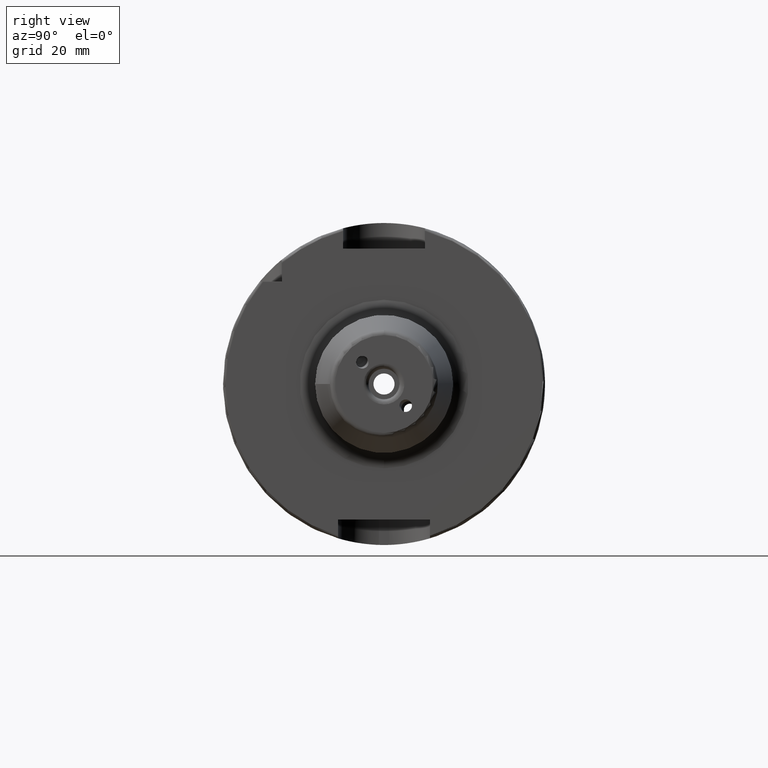
[diagram: clean part render]
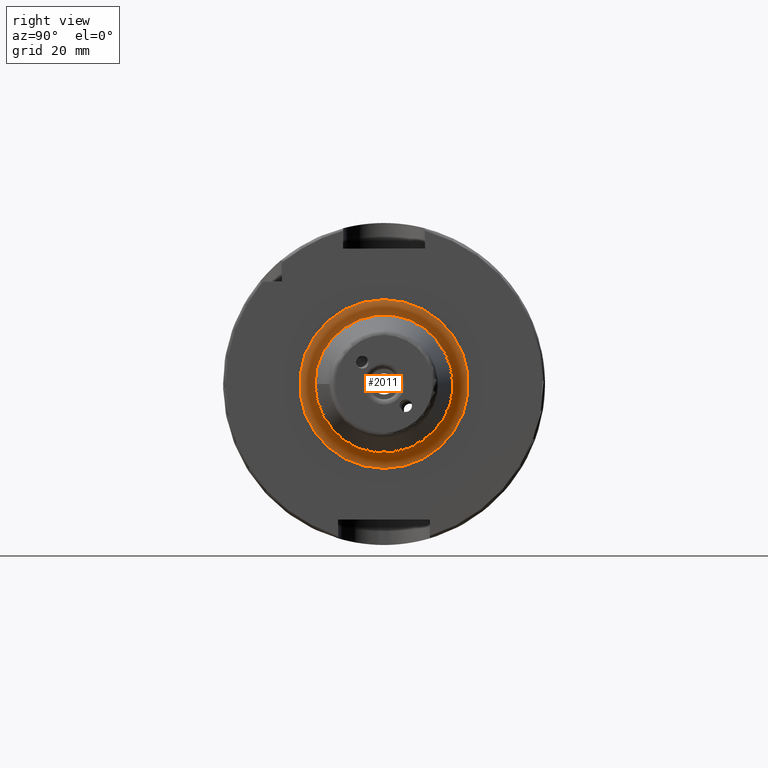
[diagram: same view with one face highlighted and labeled with its STEP entity id]
A machine part, right view. The second image highlights one B-rep face of the part: STEP entity #2011.
In plain terms, the highlighted toroidal blend (fillet) surface has major radius 16.5 mm and minor (blend) radius 3 mm.
Its self-contained STEP definition (entity closure, byte-faithful):
#146=TOROIDAL_SURFACE('',#2169,16.5,3.);
#223=FACE_OUTER_BOUND('',#347,.T.);
#347=EDGE_LOOP('',(#1383,#1384,#1385,#1386,#1387));
#701=CIRCLE('',#2170,13.5);
#702=CIRCLE('',#2171,3.);
#703=CIRCLE('',#2172,16.5);
#704=CIRCLE('',#2173,13.5);
#831=VERTEX_POINT('',#3074);
#832=VERTEX_POINT('',#3075);
#833=VERTEX_POINT('',#3077);
#1045=EDGE_CURVE('',#831,#832,#701,.T.);
#1046=EDGE_CURVE('',#832,#833,#702,.T.);
#1047=EDGE_CURVE('',#833,#833,#703,.T.);
#1048=EDGE_CURVE('',#832,#831,#704,.T.);
#1383=ORIENTED_EDGE('',*,*,#1045,.T.);
#1384=ORIENTED_EDGE('',*,*,#1046,.T.);
#1385=ORIENTED_EDGE('',*,*,#1047,.T.);
#1386=ORIENTED_EDGE('',*,*,#1046,.F.);
#1387=ORIENTED_EDGE('',*,*,#1048,.T.);
#2011=ADVANCED_FACE('',(#223),#146,.F.);
#2169=AXIS2_PLACEMENT_3D('',#3073,#2457,#2458);
#2170=AXIS2_PLACEMENT_3D('',#3076,#2459,#2460);
#2171=AXIS2_PLACEMENT_3D('',#3078,#2461,#2462);
#2172=AXIS2_PLACEMENT_3D('',#3079,#2463,#2464);
#2173=AXIS2_PLACEMENT_3D('',#3080,#2465,#2466);
#2457=DIRECTION('center_axis',(-1.,0.,0.));
#2458=DIRECTION('ref_axis',(0.,0.,1.));
#2459=DIRECTION('center_axis',(-1.,0.,0.));
#2460=DIRECTION('ref_axis',(0.,-1.,-1.22464679914735E-16));
#2461=DIRECTION('center_axis',(0.,-1.,1.22464679914735E-16));
#2462=DIRECTION('ref_axis',(0.,-1.22464679914735E-16,-1.));
#2463=DIRECTION('center_axis',(1.,0.,0.));
#2464=DIRECTION('ref_axis',(0.,-1.,-1.22464679914735E-16));
#2465=DIRECTION('center_axis',(-1.,0.,0.));
#2466=DIRECTION('ref_axis',(0.,-1.,-1.22464679914735E-16));
#3073=CARTESIAN_POINT('Origin',(29.,3.33066907387547E-15,0.));
#3074=CARTESIAN_POINT('',(29.,-13.5,-1.65327317884893E-15));
#3075=CARTESIAN_POINT('',(29.,1.67739589502654E-15,-13.5));
#3076=CARTESIAN_POINT('Origin',(29.,3.33066907387547E-15,0.));
#3077=CARTESIAN_POINT('',(26.,1.31000185528234E-15,-16.5));
#3078=CARTESIAN_POINT('Origin',(29.,1.31000185528234E-15,-16.5));
#3079=CARTESIAN_POINT('Origin',(26.,3.33066907387547E-15,0.));
#3080=CARTESIAN_POINT('Origin',(29.,3.33066907387547E-15,0.));